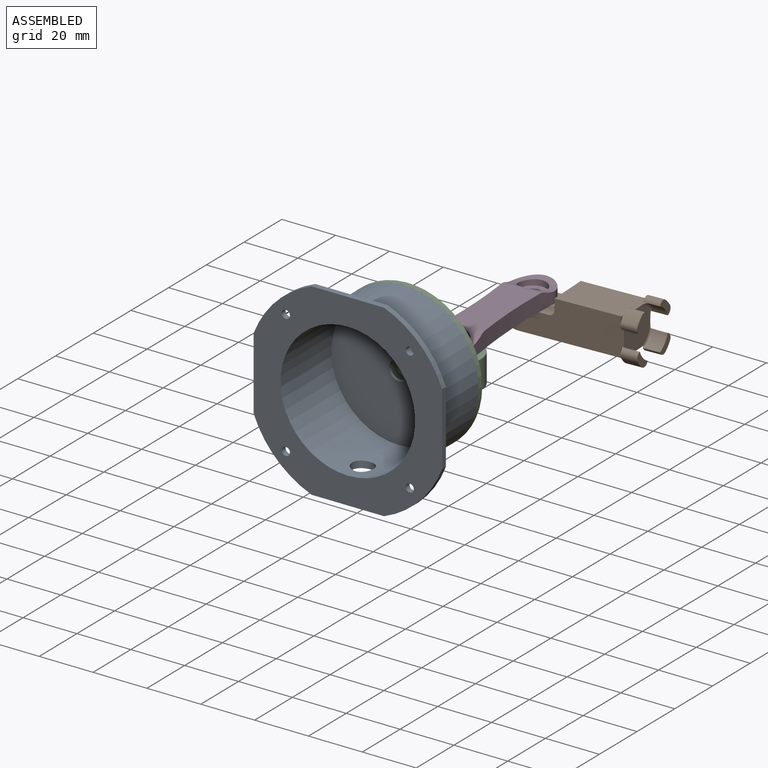
[diagram: assembled view]
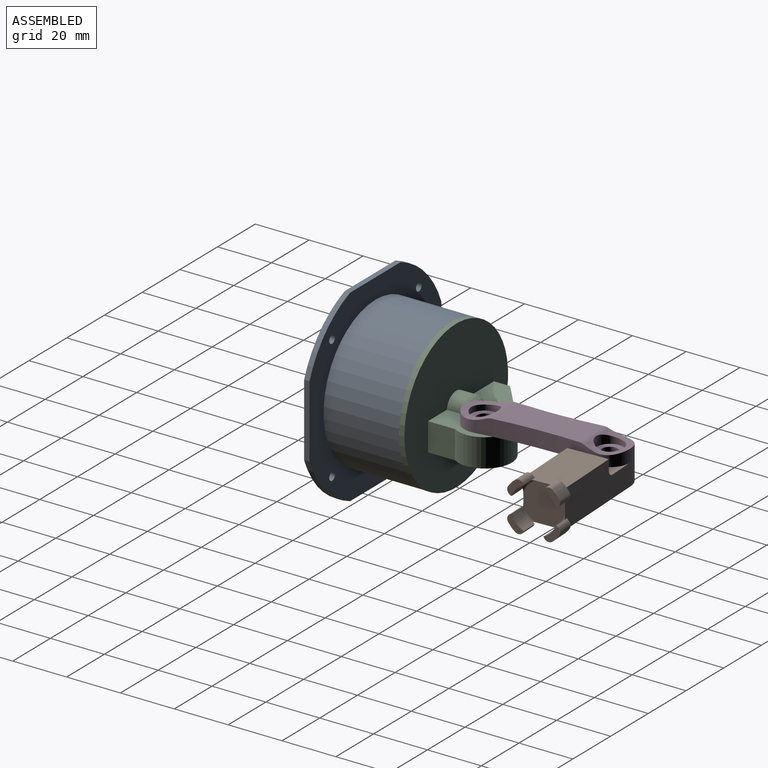
[diagram: assembled view, second angle]
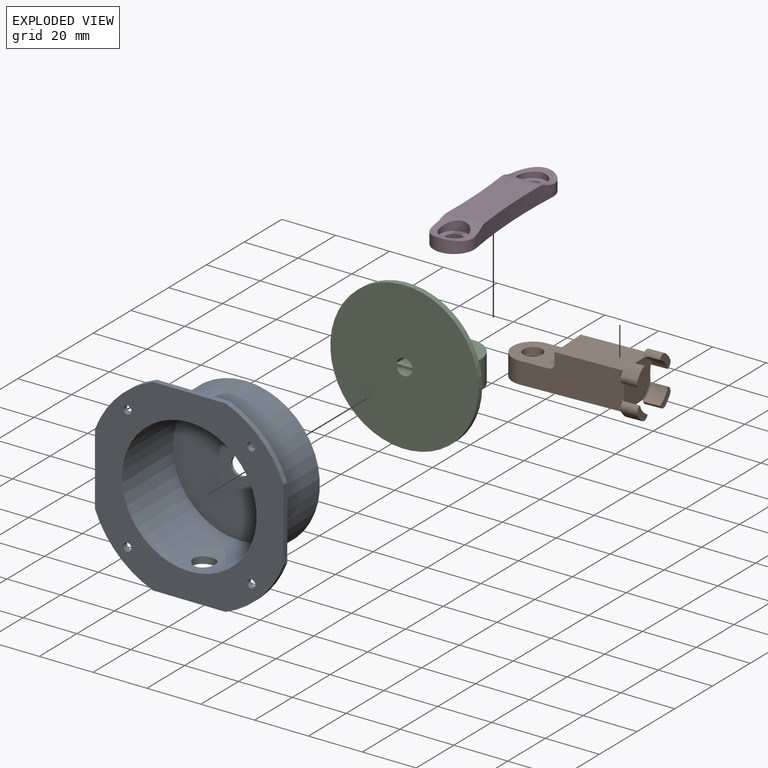
[diagram: exploded view]
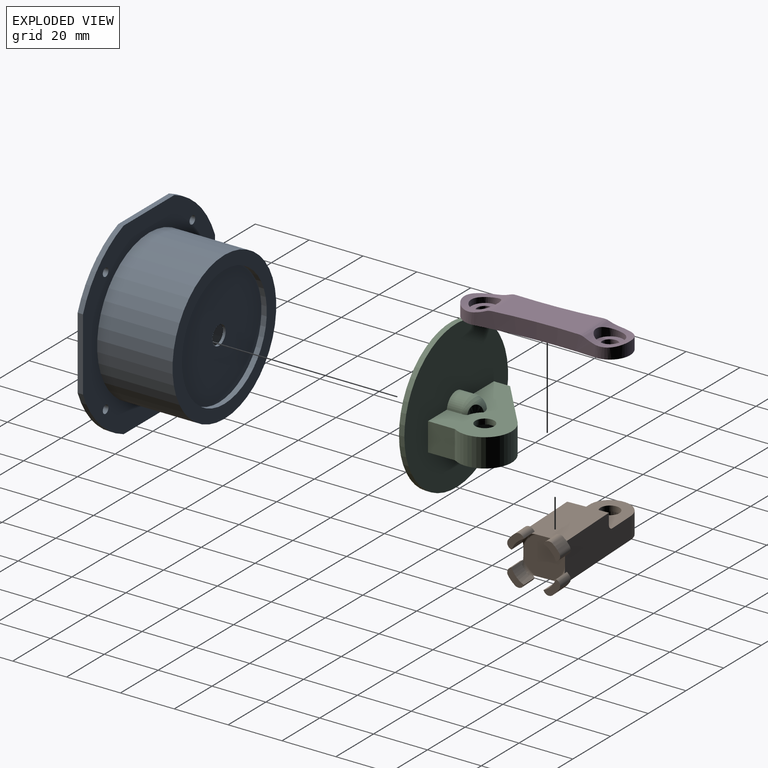
[diagram: exploded view, second angle]
ASSEMBLY  parts=4 mates=3
PART A: 22 faces, bbox 70x30x70 mm
  f0: cylinder r=3.5mm len=7mm, axis (0,-1,0), area 22mm2, adj f18,f19
  f1: cylinder r=37.5mm len=21.54mm, axis (0,-1,0), area 62.7mm2, adj f2,f8,f14,f15
  f2: plane 26.93x2mm, normal (-1,0,0), area 53.9mm2, adj f1,f3,f14,f15
  f3: cylinder r=37.5mm len=21.54mm, axis (0,-1,0), area 62.7mm2, adj f2,f4,f14,f15
  f4: plane 26.93x2mm, normal (0,0,-1), area 53.9mm2, adj f3,f5,f14,f15
  f5: cylinder r=37.5mm len=21.54mm, axis (0,-1,0), area 62.7mm2, adj f4,f6,f14,f15
  f6: plane 26.93x2mm, normal (1,0,0), area 53.9mm2, adj f5,f7,f14,f15
  f7: cylinder r=37.5mm len=21.54mm, axis (0,-1,0), area 62.7mm2, adj f6,f8,f14,f15
  f8: plane 26.93x2mm, normal (0,0,1), area 53.9mm2, adj f1,f7,f14,f15
  f9: cylinder r=1.5mm len=3mm, axis (0,-1,0), area 18.8mm2, adj f14,f15
  f10: cylinder r=1.5mm len=3mm, axis (0,-1,0), area 18.8mm2, adj f14,f15
  f11: cylinder r=1.5mm len=3mm, axis (0,-1,0), area 18.8mm2, adj f14,f15
  f12: cylinder r=1.5mm len=3mm, axis (0,-1,0), area 18.8mm2, adj f14,f15
  f13: cylinder r=25mm len=50mm, axis (0,-1,0), area 4190.7mm2, adj f15,f18,f21
  f14: plane 70x70mm, normal (0,1,0), area 1833mm2, adj f1,f2,f3,f4,f5,f6,f7,f8
  f15: plane 70x70mm, normal (0,-1,0), area 2245.4mm2, adj f1,f2,f3,f4,f5,f6,f7,f8
  f16: cylinder r=27.5mm len=55mm, axis (0,-1,0), area 4787.7mm2, adj f14,f17,f21
  f17: plane 55x55mm, normal (0,1,0), area 785.4mm2, adj f16,f20
  f18: plane 50x50mm, normal (0,-1,0), area 1925mm2, adj f0,f13
  f19: plane 45x45mm, normal (0,1,0), area 1551.9mm2, adj f0,f20
  f20: cylinder r=22.5mm len=45mm, axis (0,1,0), area 282.7mm2, adj f17,f19
  f21: cylinder r=4mm len=8mm, axis (0,0,1), area 63.2mm2, adj f13,f16
PART B: 74 faces, bbox 52.2x20.2x19.5 mm
  f0: plane 3.01x0.66mm, normal (1,0,0), area 1.4mm2, adj f37,f64,f69
  f1: plane 3.01x0.66mm, normal (1,0,0), area 1.4mm2, adj f22,f61,f72
  f2: plane 3.01x0.66mm, normal (1,0,0), area 1.4mm2, adj f30,f57,f71
  f3: plane 2.72x0.52mm, normal (1,0,0), area 1mm2, adj f44,f53,f66
  f4: plane 15x14mm, normal (-1,0,0), area 173.1mm2, adj f5,f6,f46,f47,f48,f49
  f5: plane 46.68x15.68mm, normal (0,0,1), area 205.6mm2, adj f4,f9,f10,f11,f13,f17,f18,f19
  f6: plane 26.68x15.68mm, normal (0,0,-1), area 367.8mm2, adj f4,f7,f9,f10,f28,f35,f47,f48
  f7: plane 15x4mm, normal (1,0,0), area 60mm2, adj f6,f9,f10,f12
  f8: plane 18x15mm, normal (0,0,-1), area 207.4mm2, adj f9,f10,f11,f12,f21
  f9: plane 39.68x15.19mm, normal (0,-1,0), area 442.9mm2, adj f5,f6,f7,f8,f11,f12,f35,f42
  f10: plane 39.68x15.19mm, normal (0,1,0), area 442.9mm2, adj f5,f6,f7,f8,f11,f12,f24,f28
  f11: cylinder r=7.5mm len=15mm, axis (0,0,-1), area 188.5mm2, adj f5,f8,f9,f10
  f12: cylinder r=2mm len=15mm, axis (0,-1,0), area 47.1mm2, adj f7,f8,f9,f10
  f13: plane 12x11mm, normal (1,0,0), area 132mm2, adj f5,f14,f17,f18
  f14: plane 21x11mm, normal (0,0,1), area 231mm2, adj f13,f15,f17,f18
  f15: plane 11x2mm, normal (-1,0,0), area 22mm2, adj f14,f17,f18,f20
  f16: plane 16x11mm, normal (0,0,1), area 124.5mm2, adj f17,f18,f19,f20,f21
  f17: plane 35.5x12mm, normal (0,1,0), area 342.4mm2, adj f5,f13,f14,f15,f16,f19,f20
  f18: plane 35.5x12mm, normal (0,-1,0), area 342.4mm2, adj f5,f13,f14,f15,f16,f19,f20
  f19: cylinder r=5.5mm len=11mm, axis (0,0,-1), area 103.7mm2, adj f5,f16,f17,f18
  f20: cylinder r=4mm len=11mm, axis (0,-1,0), area 69.1mm2, adj f15,f16,f17,f18
  f21: cylinder r=3.5mm len=7mm, axis (0,0,-1), area 44mm2, adj f8,f16
  f22: cylinder r=11mm len=6mm, axis (1,0,0), area 22.3mm2, adj f1,f26,f27,f59,f60,f72,f73
  f23: plane 6.42x0.26mm, normal (0,0.35,-0.94), area 1.7mm2, adj f24,f26,f58,f73
  f24: cylinder r=8.5mm len=7.5mm, axis (1,0,0), area 38.3mm2, adj f5,f10,f23,f25,f26,f49,f58,f61
  f25: plane 6.21x0.25mm, normal (0,-0.91,0.41), area 1.7mm2, adj f24,f26,f61,f72
  f26: plane 6.18x6mm, normal (-1,0,0), area 16.8mm2, adj f22,f23,f24,f25,f72,f73
  f27: plane 2.72x0.52mm, normal (1,0,0), area 1mm2, adj f22,f58,f73
  f28: cylinder r=8.5mm len=7.5mm, axis (1,0,0), area 38.3mm2, adj f6,f10,f29,f31,f32,f48,f54,f57
  f29: plane 6.42x0.26mm, normal (0,0.35,0.94), area 1.7mm2, adj f28,f32,f54,f70
  f30: cylinder r=11mm len=6mm, axis (1,0,0), area 22.3mm2, adj f2,f32,f33,f55,f56,f70,f71
  f31: plane 6.21x0.25mm, normal (0,-0.91,-0.41), area 1.7mm2, adj f28,f32,f57,f71
  f32: plane 6.18x6mm, normal (-1,0,0), area 16.8mm2, adj f28,f29,f30,f31,f70,f71
  f33: plane 2.72x0.52mm, normal (1,0,0), area 1mm2, adj f30,f54,f70
  f34: plane 6.42x0.26mm, normal (0,-0.35,0.94), area 1.7mm2, adj f35,f38,f62,f68
  f35: cylinder r=8.5mm len=7.5mm, axis (1,0,0), area 38.3mm2, adj f6,f9,f34,f36,f38,f47,f62,f64
  f36: plane 6.21x0.25mm, normal (0,0.91,-0.41), area 1.7mm2, adj f35,f38,f64,f69
  f37: cylinder r=11mm len=6mm, axis (1,0,0), area 22.3mm2, adj f0,f38,f39,f63,f65,f68,f69
  f38: plane 6.18x6mm, normal (-1,0,0), area 16.8mm2, adj f34,f35,f36,f37,f68,f69
  f39: plane 2.72x0.52mm, normal (1,0,0), area 1mm2, adj f37,f62,f68
  f40: plane 3.01x0.66mm, normal (1,0,0), area 1.4mm2, adj f44,f50,f67
  f41: plane 6.21x0.25mm, normal (0,0.91,0.41), area 1.7mm2, adj f42,f45,f50,f67
  f42: cylinder r=8.5mm len=7.5mm, axis (1,0,0), area 38.3mm2, adj f5,f9,f41,f43,f45,f46,f50,f53
  f43: plane 6.42x0.26mm, normal (0,-0.35,-0.94), area 1.7mm2, adj f42,f45,f53,f66
  f44: cylinder r=11mm len=6mm, axis (1,0,0), area 22.3mm2, adj f3,f40,f45,f51,f52,f66,f67
  f45: plane 6.18x6mm, normal (-1,0,0), area 16.8mm2, adj f41,f42,f43,f44,f66,f67
  f46: torus R=7.5mm, axis (-1,0,0), area 10.6mm2, adj f4,f5,f9,f42
  f47: torus R=7.5mm, axis (-1,0,0), area 10.6mm2, adj f4,f6,f9,f35
  f48: torus R=7.5mm, axis (-1,0,0), area 10.6mm2, adj f4,f6,f10,f28
  f49: torus R=7.5mm, axis (-1,0,0), area 10.6mm2, adj f4,f5,f10,f24
  f50: cylinder r=1.5mm len=3.46mm, axis (0,1,0), area 6.6mm2, adj f5,f40,f41,f42,f51,f67
  f51: bspline ~2.32x1.63mm, area 1.5mm2, adj f5,f9,f44,f50,f52
  f52: bspline ~2.64x1.66mm, area 1.9mm2, adj f9,f44,f51,f53
  f53: cylinder r=1.5mm len=3.34mm, axis (0,0,1), area 6.7mm2, adj f3,f9,f42,f43,f52,f66
  f54: cylinder r=1.5mm len=3.34mm, axis (0,0,-1), area 6.7mm2, adj f10,f28,f29,f33,f55,f70
  f55: bspline ~2.64x1.66mm, area 1.9mm2, adj f10,f30,f54,f56
  f56: bspline ~2.32x1.63mm, area 1.5mm2, adj f6,f10,f30,f55,f57
  f57: cylinder r=1.5mm len=3.46mm, axis (0,-1,0), area 6.6mm2, adj f2,f6,f28,f31,f56,f71
  f58: cylinder r=1.5mm len=3.34mm, axis (0,0,-1), area 6.7mm2, adj f10,f23,f24,f27,f59,f73
  f59: bspline ~2.57x1.65mm, area 1.9mm2, adj f10,f22,f58,f60
  f60: bspline ~2.34x1.65mm, area 1.5mm2, adj f5,f10,f22,f59,f61
  f61: cylinder r=1.5mm len=3.46mm, axis (0,1,0), area 6.6mm2, adj f1,f5,f24,f25,f60,f72
  f62: cylinder r=1.5mm len=3.34mm, axis (0,0,1), area 6.7mm2, adj f9,f34,f35,f39,f63,f68
  f63: bspline ~2.57x1.65mm, area 1.9mm2, adj f9,f37,f62,f65
  f64: cylinder r=1.5mm len=3.46mm, axis (0,-1,0), area 6.6mm2, adj f0,f6,f35,f36,f65,f69
  f65: bspline ~2.34x1.65mm, area 1.5mm2, adj f6,f9,f37,f63,f64
  f66: cylinder r=2mm len=6.22mm, axis (1,0,0), area 21.6mm2, adj f3,f43,f44,f45,f53
  f67: cylinder r=2mm len=6.09mm, axis (1,0,0), area 21.6mm2, adj f40,f41,f44,f45,f50
  f68: cylinder r=2mm len=6.22mm, axis (1,0,0), area 21.6mm2, adj f34,f37,f38,f39,f62
  f69: cylinder r=2mm len=6.09mm, axis (1,0,0), area 21.6mm2, adj f0,f36,f37,f38,f64
  f70: cylinder r=2mm len=6.22mm, axis (1,0,0), area 21.6mm2, adj f29,f30,f32,f33,f54
  f71: cylinder r=2mm len=6.09mm, axis (1,0,0), area 21.6mm2, adj f2,f30,f31,f32,f57
  f72: cylinder r=2mm len=6.09mm, axis (1,0,0), area 21.6mm2, adj f1,f22,f25,f26,f61
  f73: cylinder r=2mm len=6.22mm, axis (1,0,0), area 21.6mm2, adj f22,f23,f26,f27,f58
PART C: 31 faces, bbox 55.3x27.5x55.3 mm
  f0: revolved ~9.95x5.28mm, area 62.1mm2, adj f1,f19,f24,f26,f30
  f1: plane 36.75x27.46mm, normal (1,0,0), area 591.3mm2, adj f0,f2,f5,f6,f7,f8,f10,f12
  f2: plane 55x55mm, normal (0,1,0), area 1974.1mm2, adj f1,f7,f9,f11,f12,f19
  f3: plane 5.92x3.5mm, normal (-1,0,0), area 20.7mm2, adj f4,f10,f17
  f4: cylinder r=3mm len=7mm, axis (0,1,0), area 58.9mm2, adj f3,f10,f20,f22,f23
  f5: plane 20x16.78mm, normal (0,0.77,0.64), area 274.1mm2, adj f1,f6,f7,f11
  f6: cylinder r=9.99mm len=16.42mm, axis (-1,0,0), area 294.6mm2, adj f1,f5,f11,f12
  f7: plane 10.5x6mm, normal (0,0,1), area 63mm2, adj f1,f2,f5,f11
  f8: cylinder r=3mm len=7mm, axis (0,1,0), area 58.9mm2, adj f1,f10,f25
  f9: cylinder r=27.5mm len=55mm, axis (0,1,0), area 345.6mm2, adj f2,f10
  f10: plane 55x55mm, normal (0,-1,0), area 2353.5mm2, adj f1,f3,f4,f8,f9
  f11: plane 36.42x25.12mm, normal (-1,0,0), area 149.7mm2, adj f2,f5,f6,f7,f12,f13,f14,f15
  f12: plane 10.5x10mm, normal (0,0,-1), area 105mm2, adj f1,f2,f6,f11
  f13: cylinder r=8.49mm len=13.95mm, axis (1,0,0), area 242.4mm2, adj f11,f14,f15,f18
  f14: plane 19.46x16.33mm, normal (0,-0.77,-0.64), area 254.1mm2, adj f11,f13,f16,f18
  f15: plane 10x8.93mm, normal (0,0,1), area 89.3mm2, adj f11,f13,f17,f18
  f16: plane 10x3.8mm, normal (0,0,-1), area 38mm2, adj f11,f14,f17,f18
  f17: plane 32x10mm, normal (0,1,0), area 285.7mm2, adj f3,f11,f15,f16,f18,f20,f21,f22
  f18: plane 33.42x22.12mm, normal (-1,0,0), area 429.3mm2, adj f13,f14,f15,f16,f17,f28
  f19: cylinder r=5mm len=9.95mm, axis (0,-1,0), area 73.5mm2, adj f0,f1,f2
  f20: plane 3.5x2.02mm, normal (1,0,0), area 7.1mm2, adj f4,f17,f21,f23
  f21: cylinder r=5mm len=9.95mm, axis (0,-1,0), area 51.5mm2, adj f17,f20,f22,f23
  f22: plane 3.5x2.02mm, normal (1,0,0), area 7.1mm2, adj f4,f17,f21,f23
  f23: plane 9.95x4.5mm, normal (0,1,0), area 23.1mm2, adj f4,f20,f21,f22
  f24: cylinder r=0.58mm len=2.02mm, axis (0,0,-1), area 1.3mm2, adj f0,f1,f25
  f25: revolved ~5.92x3.27mm, area 26.3mm2, adj f1,f8,f24,f26
  f26: cylinder r=0.58mm len=2.02mm, axis (0,0,-1), area 1.3mm2, adj f0,f1,f25
  f27: cylinder r=3.5mm len=7mm, axis (-1,0,0), area 44mm2, adj f1,f29
  f28: cylinder r=5mm len=10mm, axis (1,0,0), area 47.1mm2, adj f18,f29
  f29: plane 10x10mm, normal (-1,0,0), area 40.1mm2, adj f27,f28
  f30: cylinder r=8mm len=4.49mm, axis (-1,0,0), area 11.7mm2, adj f0,f1
PART D: 16 faces, bbox 60x15x6 mm
  f0: cylinder r=2.9mm len=5.8mm, axis (0,0,-1), area 36.4mm2, adj f6,f13
  f1: cylinder r=2.9mm len=5.8mm, axis (0,0,-1), area 36.4mm2, adj f6,f11
  f2: cylinder r=7.5mm len=15mm, axis (0,0,-1), area 108.3mm2, adj f3,f5,f6,f7
  f3: cylinder r=200mm len=43.37mm, axis (0,0,-1), area 251.2mm2, adj f2,f4,f6,f7,f8,f9,f14,f15
  f4: cylinder r=7.5mm len=15mm, axis (0,0,-1), area 108.3mm2, adj f3,f5,f6,f9
  f5: cylinder r=200mm len=43.37mm, axis (0,0,-1), area 251.2mm2, adj f2,f4,f6,f7,f8,f9,f14,f15
  f6: plane 60x15mm, normal (0,0,-1), area 726.8mm2, adj f0,f1,f2,f3,f4,f5
  f7: cylinder r=17.5mm len=15mm, axis (0,-1,0), area 81.4mm2, adj f2,f3,f5,f12,f14
  f8: plane 31.45x13.79mm, normal (0,0,1), area 407.8mm2, adj f3,f5,f14,f15
  f9: cylinder r=17.5mm len=15mm, axis (0,-1,0), area 81.4mm2, adj f3,f4,f5,f10,f15
  f10: cylinder r=5mm len=10mm, axis (0,0,1), area 80.2mm2, adj f9,f11,f15
  f11: plane 10x10mm, normal (0,0,1), area 52.1mm2, adj f1,f10
  f12: cylinder r=5mm len=10mm, axis (0,0,1), area 80.2mm2, adj f7,f13,f14
  f13: plane 10x10mm, normal (0,0,1), area 52.1mm2, adj f0,f12
  f14: cylinder r=5mm len=14.14mm, axis (0,-1,0), area 29mm2, adj f3,f5,f7,f8,f12
  f15: cylinder r=5mm len=14.14mm, axis (0,-1,0), area 29mm2, adj f3,f5,f8,f9,f10
PLACE A t=(167.39,-41.15,39.42)mm fixed
PLACE B rot(axis=(0.02,-1,0),180deg) t=(58.74,60.22,45.92)mm
PLACE C rot(axis=(0,-1,0),90deg) t=(17.39,-9.15,-90.58)mm
PLACE D rot(axis=(0,0,-1),87.2deg) t=(21.65,50.93,39.92)mm
MATE revolute D.f0 <-> B.f11  axis (0,0,-1) through (21.65,50.93,39.92)mm
MATE revolute C.f6 <-> D.f1  axis (0,0,1) through (23.81,5.98,39.92)mm
MATE revolute A.f16 <-> C.f9  axis (0,1,0) through (17.39,-11.15,39.42)mm
